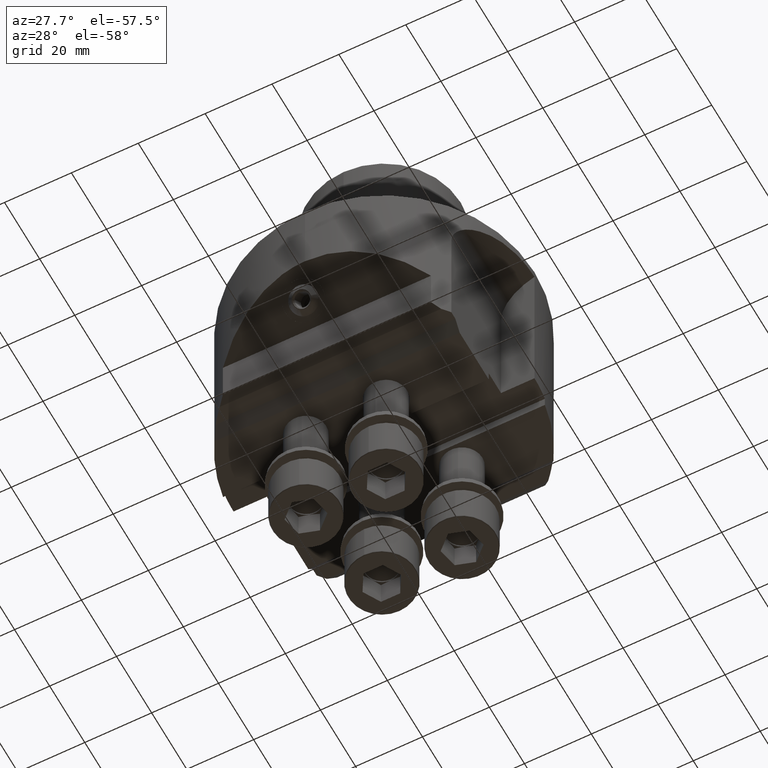
[diagram: clean part render]
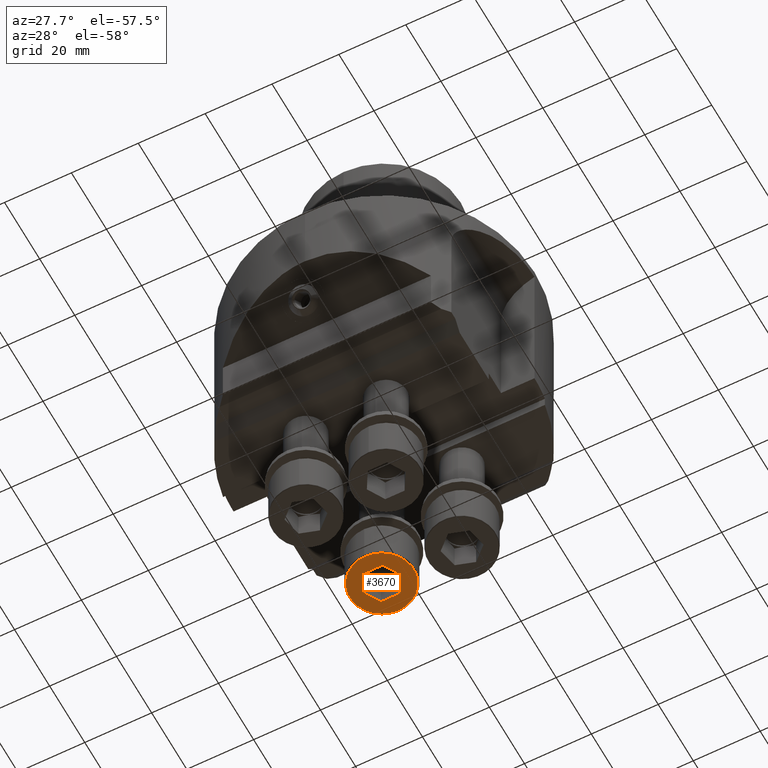
[diagram: same view with one face highlighted and labeled with its STEP entity id]
A machine part, auxiliary view. The second image highlights one B-rep face of the part: STEP entity #3670.
In plain terms, the highlighted planar face has unit normal (0, 0, 1).
Its self-contained STEP definition (entity closure, byte-faithful):
#3614=EDGE_CURVE('NONE',#4738,#4182,#7891,.T.);
#3670=ADVANCED_FACE('NONE',(#7956,#7957),#7958,.F.);
#3724=EDGE_CURVE('NONE',#4444,#5978,#8018,.T.);
#3814=VERTEX_POINT('NONE',#8120);
#4066=EDGE_CURVE('NONE',#4578,#3814,#8406,.T.);
#4182=VERTEX_POINT('NONE',#8536);
#4270=EDGE_CURVE('NONE',#5642,#5644,#8636,.T.);
#4372=EDGE_CURVE('NONE',#4182,#4578,#8754,.T.);
#4444=VERTEX_POINT('NONE',#8835);
#4578=VERTEX_POINT('NONE',#8984);
#4738=VERTEX_POINT('NONE',#9164);
#4812=EDGE_CURVE('NONE',#5978,#4738,#9251,.T.);
#4864=EDGE_CURVE('NONE',#5644,#5642,#9310,.T.);
#5320=EDGE_CURVE('NONE',#3814,#4444,#9818,.T.);
#5642=VERTEX_POINT('NONE',#10172);
#5644=VERTEX_POINT('NONE',#10174);
#5978=VERTEX_POINT('NONE',#10556);
#7891=LINE('',#13222,#13223);
#7956=FACE_OUTER_BOUND('',#13306,.T.);
#7957=FACE_BOUND('',#13307,.T.);
#7958=PLANE('',#13308);
#8018=LINE('',#13418,#13419);
#8120=CARTESIAN_POINT('',(-10.8867513459481,9.0,-96.0));
#8406=LINE('',#14010,#14011);
#8536=CARTESIAN_POINT('',(-2.22649730810375,14.0,-96.0));
#8636=CIRCLE('',#14374,9.6);
#8754=LINE('',#14537,#14538);
#8835=CARTESIAN_POINT('',(-13.7735026918963,14.0,-96.0));
#8984=CARTESIAN_POINT('',(-5.11324865405187,9.0,-96.0));
#9164=CARTESIAN_POINT('',(-5.11324865405186,19.0,-96.0));
#9251=LINE('',#15268,#15269);
#9310=CIRCLE('',#15359,9.6);
#9818=LINE('',#16360,#16361);
#10172=CARTESIAN_POINT('',(-8.0,4.4,-96.0));
#10174=CARTESIAN_POINT('',(-8.0,23.6,-96.0));
#10556=CARTESIAN_POINT('',(-10.8867513459481,19.0,-96.0));
#13222=CARTESIAN_POINT('',(-5.11324865405186,19.0,-96.0));
#13223=VECTOR('',#19904,1000.0);
#13306=EDGE_LOOP('',(#19994,#19995));
#13307=EDGE_LOOP('',(#19996,#19997,#19998,#19999,#20000,#20001));
#13308=AXIS2_PLACEMENT_3D('',#20002,#20003,#20004);
#13418=CARTESIAN_POINT('',(-13.7735026918963,14.0,-96.0));
#13419=VECTOR('',#20069,1000.0);
#14010=CARTESIAN_POINT('',(-10.8867513459481,9.0,-96.0));
#14011=VECTOR('',#20573,1000.0);
#14374=AXIS2_PLACEMENT_3D('',#20864,#20865,#20866);
#14537=CARTESIAN_POINT('',(-5.11324865405187,9.0,-96.0));
#14538=VECTOR('',#21031,1000.0);
#15268=CARTESIAN_POINT('',(-10.8867513459481,19.0,-96.0));
#15269=VECTOR('',#21666,1000.0);
#15359=AXIS2_PLACEMENT_3D('',#21734,#21735,#21736);
#16360=CARTESIAN_POINT('',(-13.7735026918963,14.0,-96.0));
#16361=VECTOR('',#22323,1000.0);
#19904=DIRECTION('',(0.499999999999998,-0.86602540378444,-0.0));
#19994=ORIENTED_EDGE('',*,*,#4270,.T.);
#19995=ORIENTED_EDGE('',*,*,#4864,.T.);
#19996=ORIENTED_EDGE('',*,*,#3724,.F.);
#19997=ORIENTED_EDGE('',*,*,#5320,.F.);
#19998=ORIENTED_EDGE('',*,*,#4066,.F.);
#19999=ORIENTED_EDGE('',*,*,#4372,.F.);
#20000=ORIENTED_EDGE('',*,*,#3614,.F.);
#20001=ORIENTED_EDGE('',*,*,#4812,.F.);
#20002=CARTESIAN_POINT('',(-8.00000000000001,14.0,-96.0));
#20003=DIRECTION('',(0.0,0.0,1.0));
#20004=DIRECTION('',(1.0,-1.66533453693774E-016,-0.0));
#20069=DIRECTION('',(0.499999999999998,0.86602540378444,0.0));
#20573=DIRECTION('',(-1.0,1.66533453693774E-016,0.0));
#20864=CARTESIAN_POINT('',(-8.0,14.0,-96.0));
#20865=DIRECTION('',(-0.0,0.0,-1.0));
#20866=DIRECTION('',(-1.66533453693774E-016,-1.0,0.0));
#21031=DIRECTION('',(-0.499999999999998,-0.86602540378444,0.0));
#21666=DIRECTION('',(1.0,-1.66533453693774E-016,-0.0));
#21734=CARTESIAN_POINT('',(-8.0,14.0,-96.0));
#21735=DIRECTION('',(-0.0,0.0,-1.0));
#21736=DIRECTION('',(-1.66533453693774E-016,-1.0,0.0));
#22323=DIRECTION('',(-0.499999999999998,0.86602540378444,0.0));